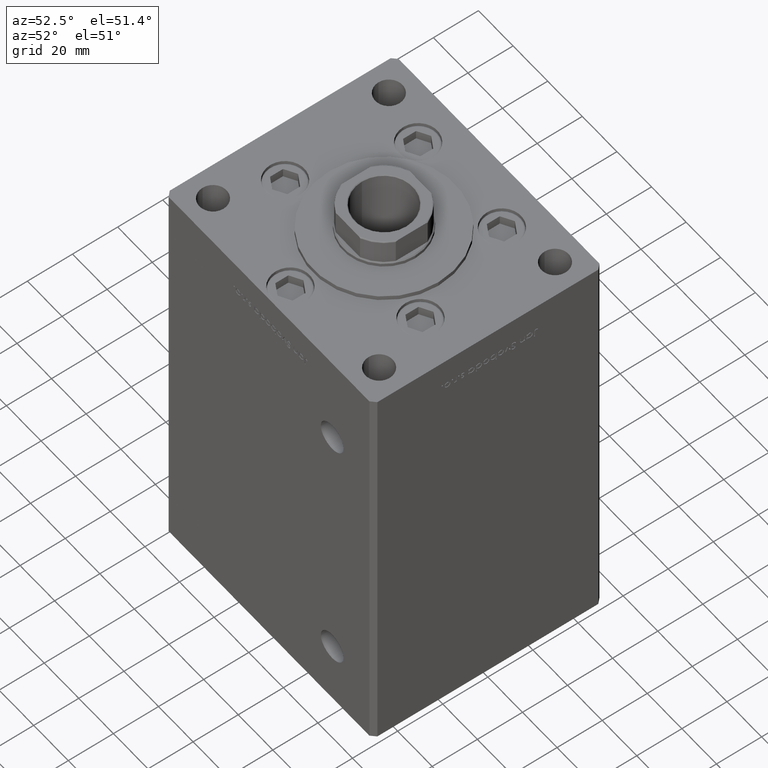
[diagram: clean part render]
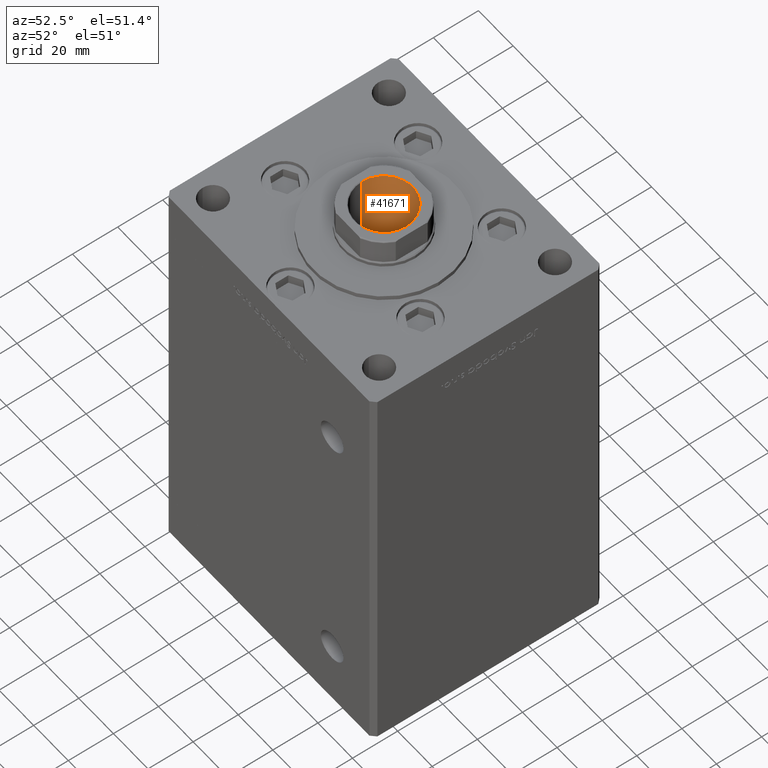
[diagram: same view with one face highlighted and labeled with its STEP entity id]
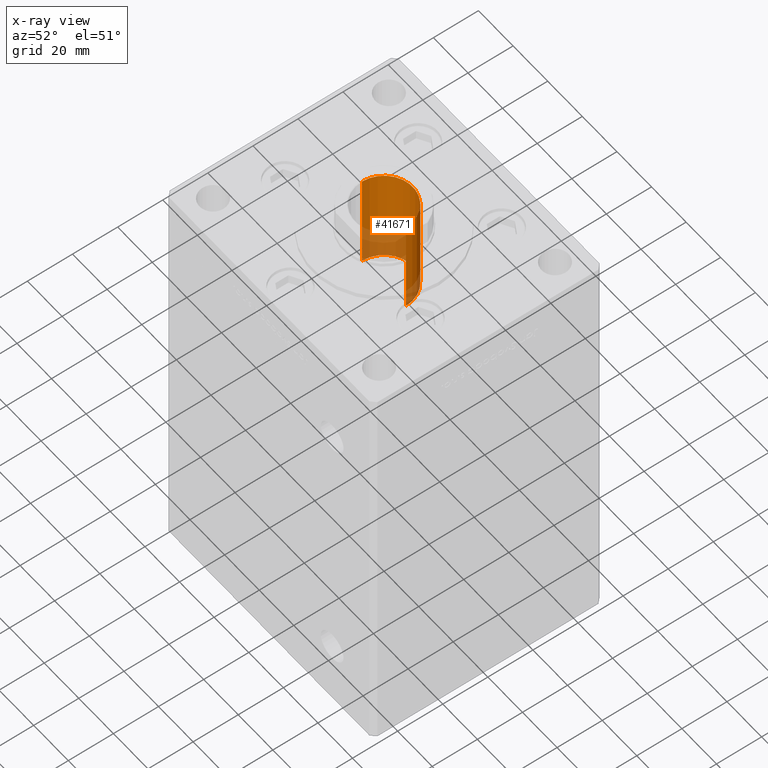
[diagram: x-ray of the same camera — body ghosted, the highlighted face saturated]
A machine part, auxiliary view. The second image highlights one B-rep face of the part: STEP entity #41671.
The next image is the same camera in x-ray: the body ghosted, the highlighted face saturated — about 27% of this face is hidden behind the body in this view.
In plain terms, the highlighted cylindrical surface (edge-blend (fillet) strip) has radius 12.75 mm, axis along (0, 0, 1).
Its self-contained STEP definition (entity closure, byte-faithful):
#2129 = VECTOR ( 'NONE', #38177, 1000.000000000000000 ) ;
#2588 = CARTESIAN_POINT ( 'NONE',  ( 0.000000000000000000, 0.000000000000000000, 169.2500000000000000 ) ) ;
#5167 = VECTOR ( 'NONE', #43892, 1000.000000000000000 ) ;
#5705 = ORIENTED_EDGE ( 'NONE', *, *, #10653, .T. ) ;
#8572 = VERTEX_POINT ( 'NONE', #42531 ) ;
#10559 = VERTEX_POINT ( 'NONE', #12333 ) ;
#10653 = EDGE_CURVE ( 'NONE', #36593, #10559, #50875, .T. ) ;
#11029 = VERTEX_POINT ( 'NONE', #26207 ) ;
#11638 = DIRECTION ( 'NONE',  ( 1.000000000000000000, 0.000000000000000000, 0.000000000000000000 ) ) ;
#12333 = CARTESIAN_POINT ( 'NONE',  ( -12.74999999999999467, 1.561424668912874519E-15, 168.9499999999999602 ) ) ;
#13402 = CARTESIAN_POINT ( 'NONE',  ( 12.74999999999999467, 0.000000000000000000, 169.2500000000000000 ) ) ;
#15176 = EDGE_CURVE ( 'NONE', #8572, #11029, #19919, .T. ) ;
#19919 = CIRCLE ( 'NONE', #40959, 12.74999999999999112 ) ;
#20137 = CARTESIAN_POINT ( 'NONE',  ( 12.74999999999999467, 0.000000000000000000, 168.9499999999999602 ) ) ;
#20164 = CARTESIAN_POINT ( 'NONE',  ( -12.74999999999999467, 1.561424668912874519E-15, 169.2500000000000000 ) ) ;
#20589 = CARTESIAN_POINT ( 'NONE',  ( 0.000000000000000000, 0.000000000000000000, 124.2500000000000142 ) ) ;
#23388 = FACE_OUTER_BOUND ( 'NONE', #48439, .T. ) ;
#26006 = CARTESIAN_POINT ( 'NONE',  ( 0.000000000000000000, 0.000000000000000000, 168.9499999999999602 ) ) ;
#26207 = CARTESIAN_POINT ( 'NONE',  ( -12.74999999999999112, 1.561424668912874125E-15, 124.2500000000000142 ) ) ;
#30467 = EDGE_CURVE ( 'NONE', #11029, #10559, #44924, .T. ) ;
#30795 = DIRECTION ( 'NONE',  ( -0.000000000000000000, -0.000000000000000000, 1.000000000000000000 ) ) ;
#35507 = CYLINDRICAL_SURFACE ( 'NONE', #51805, 12.74999999999999467 ) ;
#36267 = ORIENTED_EDGE ( 'NONE', *, *, #15176, .F. ) ;
#36593 = VERTEX_POINT ( 'NONE', #20137 ) ;
#37495 = ORIENTED_EDGE ( 'NONE', *, *, #41498, .T. ) ;
#37891 = ORIENTED_EDGE ( 'NONE', *, *, #30467, .F. ) ;
#38143 = DIRECTION ( 'NONE',  ( 1.000000000000000000, 0.000000000000000000, 0.000000000000000000 ) ) ;
#38177 = DIRECTION ( 'NONE',  ( -0.000000000000000000, -0.000000000000000000, 1.000000000000000000 ) ) ;
#40037 = AXIS2_PLACEMENT_3D ( 'NONE', #26006, #42093, #38143 ) ;
#40959 = AXIS2_PLACEMENT_3D ( 'NONE', #20589, #51691, #11638 ) ;
#41498 = EDGE_CURVE ( 'NONE', #8572, #36593, #46081, .T. ) ;
#41671 = ADVANCED_FACE ( 'NONE', ( #23388 ), #35507, .F. ) ;
#42093 = DIRECTION ( 'NONE',  ( 0.000000000000000000, 0.000000000000000000, 1.000000000000000000 ) ) ;
#42531 = CARTESIAN_POINT ( 'NONE',  ( 12.74999999999999112, 0.000000000000000000, 124.2500000000000142 ) ) ;
#43892 = DIRECTION ( 'NONE',  ( -0.000000000000000000, -0.000000000000000000, 1.000000000000000000 ) ) ;
#44924 = LINE ( 'NONE', #20164, #5167 ) ;
#46081 = LINE ( 'NONE', #13402, #2129 ) ;
#47370 = DIRECTION ( 'NONE',  ( 1.000000000000000000, 0.000000000000000000, 0.000000000000000000 ) ) ;
#48439 = EDGE_LOOP ( 'NONE', ( #37891, #36267, #37495, #5705 ) ) ;
#50875 = CIRCLE ( 'NONE', #40037, 12.74999999999999467 ) ;
#51691 = DIRECTION ( 'NONE',  ( -0.000000000000000000, -0.000000000000000000, 1.000000000000000000 ) ) ;
#51805 = AXIS2_PLACEMENT_3D ( 'NONE', #2588, #30795, #47370 ) ;